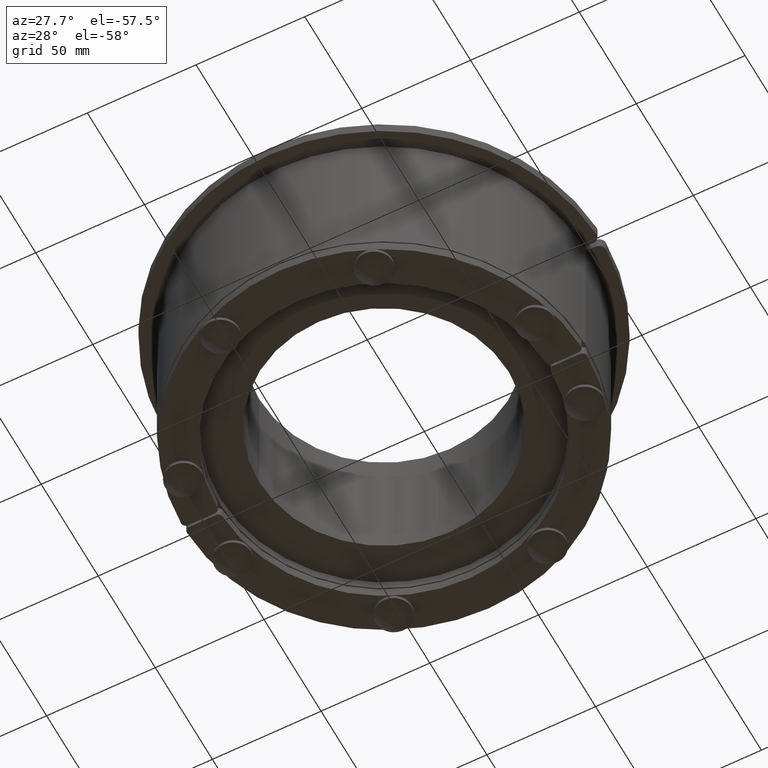
[diagram: clean part render]
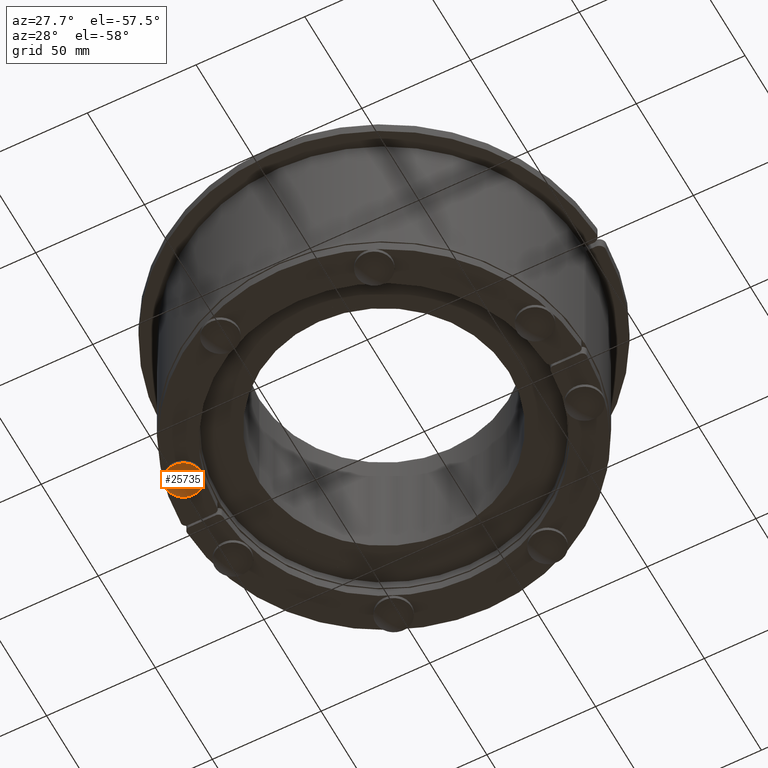
[diagram: same view with one face highlighted and labeled with its STEP entity id]
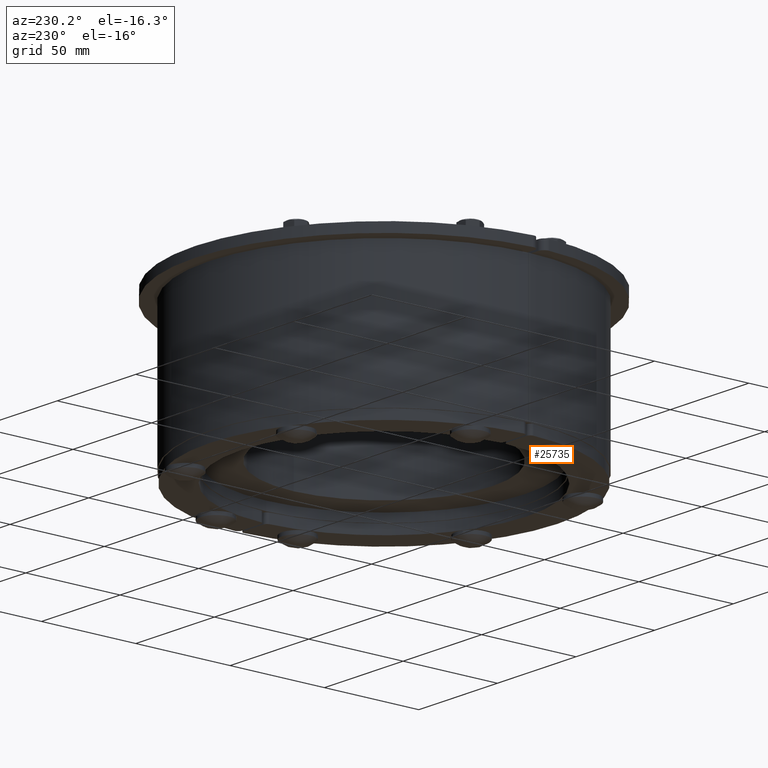
[diagram: same view with one face highlighted and labeled with its STEP entity id]
A machine part, auxiliary view. The second image highlights one B-rep face of the part: STEP entity #25735.
A second angle (auxiliary view) of the same face is appended — the face is thin or edge-on in the first view.
In plain terms, the highlighted spherical surface has radius 12.6 mm.
Its self-contained STEP definition (entity closure, byte-faithful):
#25719=CARTESIAN_POINT('',(8.720000000000002,0.0,0.0));
#25720=DIRECTION('',(0.0,0.0,1.0));
#25721=DIRECTION('',(1.0,0.0,0.0));
#25722=AXIS2_PLACEMENT_3D('',#25719,#25720,#25721);
#25723=SPHERICAL_SURFACE('',#25722,12.599999999999998);
#25724=CARTESIAN_POINT('',(-0.781809038283176,8.275000000000004,0.0));
#25725=VERTEX_POINT('',#25724);
#25726=CARTESIAN_POINT('',(-0.781809038283168,-1.301565E-032,0.0));
#25727=DIRECTION('',(1.0,0.0,0.0));
#25728=DIRECTION('',(0.0,1.0,0.0));
#25729=AXIS2_PLACEMENT_3D('',#25726,#25727,#25728);
#25730=CIRCLE('',#25729,8.275000000000004);
#25731=EDGE_CURVE('',#25725,#25725,#25730,.T.);
#25732=ORIENTED_EDGE('',*,*,#25731,.F.);
#25733=EDGE_LOOP('',(#25732));
#25734=FACE_OUTER_BOUND('',#25733,.T.);
#25735=ADVANCED_FACE('',(#25734),#25723,.T.);